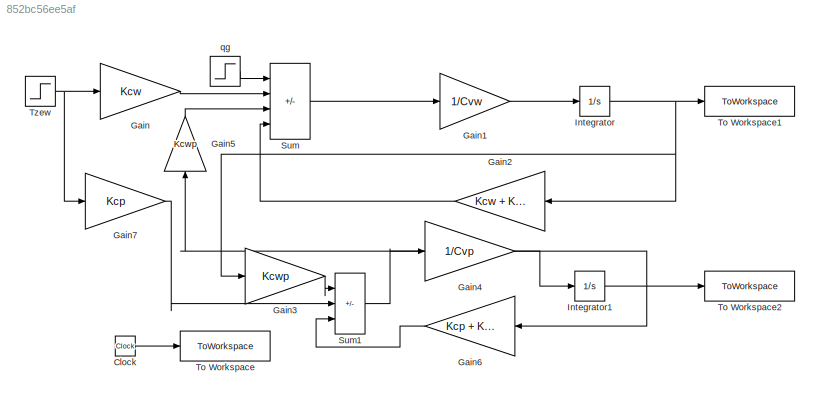
MODEL slx_852bc56ee5af
KIND model
CONFIG AbsTol = auto
CONFIG EnableMultiTasking = off
CONFIG FixedStep = auto
CONFIG MaxStep = auto
CONFIG MinStep = auto
CONFIG RelTol = 1e-3
CONFIG SampleTimeConstraint = Unconstrained
CONFIG SolverName = VariableStepAuto
CONFIG StartTime = 0.0
CONFIG StopTime = t_simulation
BLOCK [Clock] Clock
BLOCK [Gain] Gain
  Gain = Kcw
BLOCK [Gain] Gain1
  Gain = 1/Cvw
BLOCK [Gain] Gain2
  Gain = Kcw + Kcwp
  NameLocation = top
BLOCK [Gain] Gain3
  Gain = Kcwp
BLOCK [Gain] Gain4
  Gain = 1/Cvp
BLOCK [Gain] Gain5
  Gain = Kcwp
  NameLocation = right
BLOCK [Gain] Gain6
  Gain = Kcp + Kcwp
  NameLocation = top
BLOCK [Gain] Gain7
  Gain = Kcp
BLOCK [Integrator] Integrator
  InitialCondition = Twew0
BLOCK [Integrator] Integrator1
  InitialCondition = Tp0
BLOCK [Sum] Sum
  IconShape = rectangular
  Inputs = +++-
BLOCK [Sum] Sum1
  IconShape = rectangular
  Inputs = |++-
BLOCK [ToWorkspace] To Workspace
  FixptAsFi = on
  MaxDataPoints = inf
  SampleTime = -1
  VariableName = t
BLOCK [ToWorkspace] To Workspace1
  FixptAsFi = on
  MaxDataPoints = inf
  SampleTime = -1
  VariableName = Twew
BLOCK [ToWorkspace] To Workspace2
  FixptAsFi = on
  MaxDataPoints = inf
  SampleTime = -1
  VariableName = Tp
BLOCK [Step] Tzew
  After = Tzew0 + dTzew
  Before = Tzew0
  SampleTime = 0
  Time = t0
BLOCK [Step] qg
  After = qg0 + dgq
  Before = qg0
  SampleTime = 0
  Time = t0
LINE Clock:1 -> To Workspace:1
LINE Gain1:1 -> Integrator:1
LINE Gain2:1 -> Sum:4
LINE Gain3:1 -> Sum1:1
LINE Gain4:1 -> Integrator1:1
LINE Gain5:1 -> Sum:3
LINE Gain6:1 -> Sum1:3
LINE Gain7:1 -> Sum1:2
LINE Gain:1 -> Sum:2
NET Integrator1:1 -> Gain5:1, Gain6:1, To Workspace2:1
NET Integrator:1 -> Gain2:1, Gain3:1, To Workspace1:1
LINE Sum1:1 -> Gain4:1
LINE Sum:1 -> Gain1:1
NET Tzew:1 -> Gain7:1, Gain:1
LINE qg:1 -> Sum:1
note: NET lines group one-source signal fan-out (src -> all destinations, sorted); 1:1 wires keep LINE
